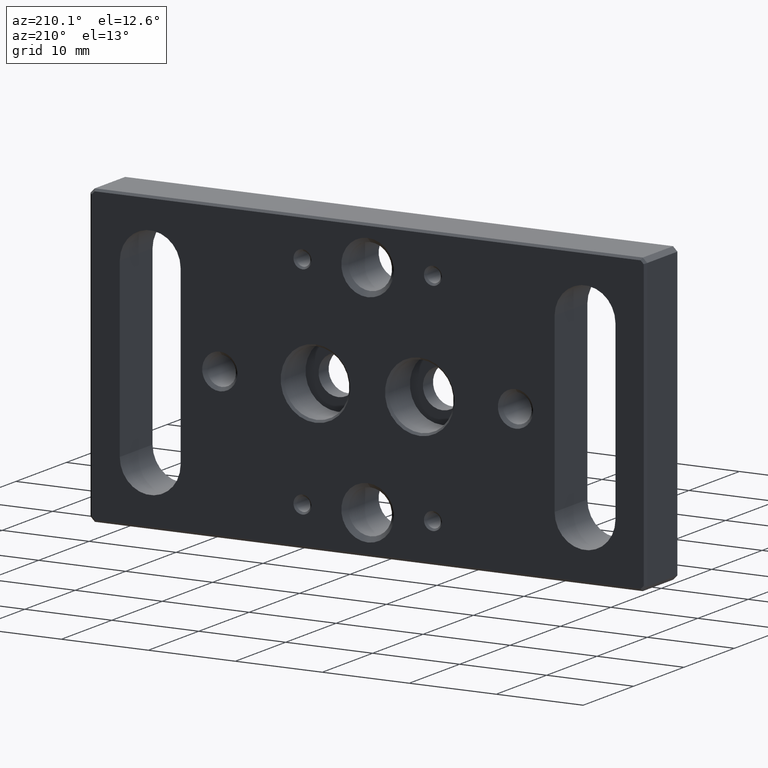
[diagram: clean part render]
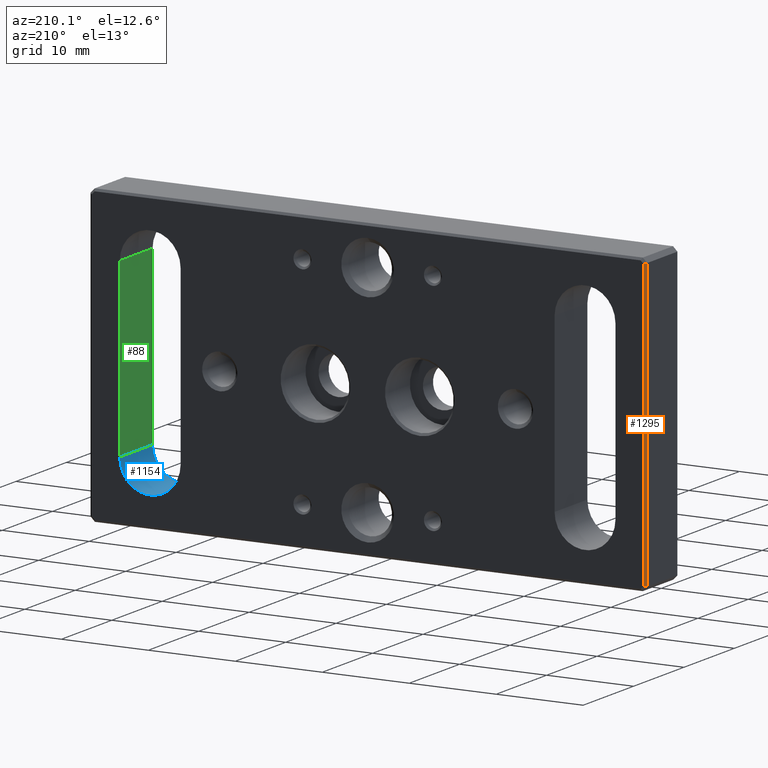
[diagram: same view with three faces highlighted in distinct colors, each labeled with its STEP entity id]
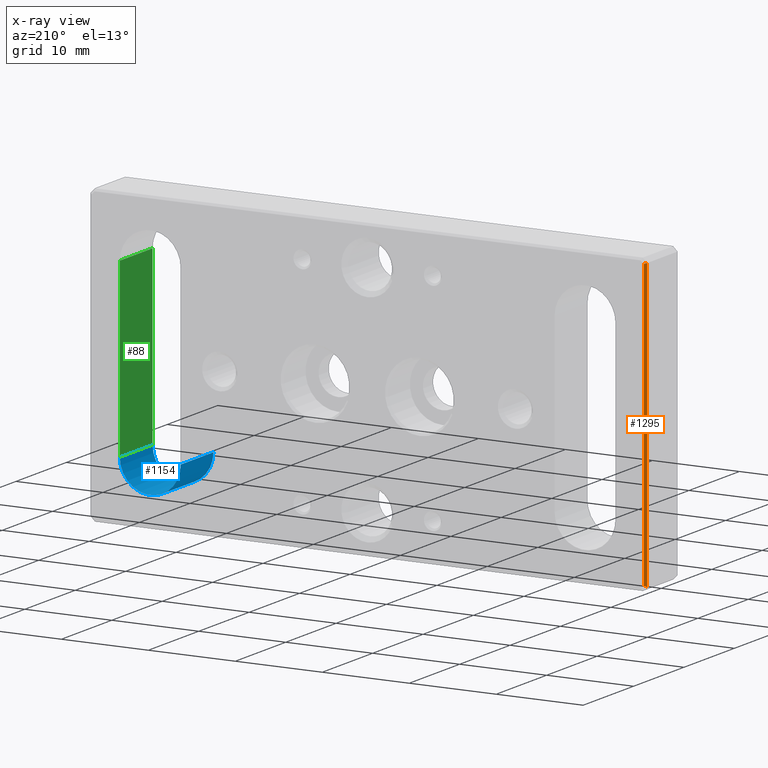
[diagram: x-ray of the same camera — body ghosted, the three highlighted faces saturated]
A machine part, auxiliary view with three faces highlighted in distinct colors.
The next image is the same camera in x-ray (body ghosted, the three faces saturated) — at least one of them is partly hidden behind the body in this view.
Their STEP definitions:

[orange] entity #1295 — the highlighted planar face has unit normal (-0.7071, 0.7071, 0).
#32 = ORIENTED_EDGE ( 'NONE', *, *, #591, .F. ) ;
#78 = CARTESIAN_POINT ( 'NONE',  ( -28.62248324118545639, 9.627516758814469000, 15.10098675135643198 ) ) ;
#81 = LINE ( 'NONE', #1485, #1602 ) ;
#93 = DIRECTION ( 'NONE',  ( -0.6785983445458498853, -0.6785983445458311225, 0.2810846377148519259 ) ) ;
#95 = ORIENTED_EDGE ( 'NONE', *, *, #98, .F. ) ;
#98 = EDGE_CURVE ( 'NONE', #1043, #375, #334, .T. ) ;
#110 = PLANE ( 'NONE',  #1569 ) ;
#124 = VECTOR ( 'NONE', #93, 1000.000000000000000 ) ;
#274 = DIRECTION ( 'NONE',  ( -0.7071067811865376918, 0.7071067811865573427, 0.000000000000000000 ) ) ;
#281 = LINE ( 'NONE', #78, #124 ) ;
#315 = VECTOR ( 'NONE', #1335, 1000.000000000000000 ) ;
#334 = LINE ( 'NONE', #707, #315 ) ;
#351 = EDGE_CURVE ( 'NONE', #1043, #810, #81, .T. ) ;
#375 = VERTEX_POINT ( 'NONE', #751 ) ;
#525 = DIRECTION ( 'NONE',  ( 0.000000000000000000, 0.000000000000000000, -1.000000000000000000 ) ) ;
#591 = EDGE_CURVE ( 'NONE', #375, #783, #281, .T. ) ;
#647 = CARTESIAN_POINT ( 'NONE',  ( -32.00000000000000711, 6.250000000000013323, 16.49999999999998224 ) ) ;
#693 = VECTOR ( 'NONE', #1258, 1000.000000000000000 ) ;
#707 = CARTESIAN_POINT ( 'NONE',  ( -31.75000000000001421, 6.500000000000000000, 16.49999999999998224 ) ) ;
#751 = CARTESIAN_POINT ( 'NONE',  ( -31.75000000000001421, 6.500000000000000000, 16.39644660940670207 ) ) ;
#755 = LINE ( 'NONE', #1264, #693 ) ;
#767 = EDGE_LOOP ( 'NONE', ( #1144, #1270, #32, #95 ) ) ;
#783 = VERTEX_POINT ( 'NONE', #647 ) ;
#810 = VERTEX_POINT ( 'NONE', #1116 ) ;
#910 = FACE_OUTER_BOUND ( 'NONE', #767, .T. ) ;
#1043 = VERTEX_POINT ( 'NONE', #1242 ) ;
#1116 = CARTESIAN_POINT ( 'NONE',  ( -32.00000000000000711, 6.250000000000012434, -16.50000000000001776 ) ) ;
#1144 = ORIENTED_EDGE ( 'NONE', *, *, #351, .T. ) ;
#1242 = CARTESIAN_POINT ( 'NONE',  ( -31.75000000000001421, 6.500000000000000000, -16.39644660940674470 ) ) ;
#1258 = DIRECTION ( 'NONE',  ( 0.000000000000000000, 0.000000000000000000, -1.000000000000000000 ) ) ;
#1264 = CARTESIAN_POINT ( 'NONE',  ( -32.00000000000000711, 6.250000000000013323, -16.50000000000001776 ) ) ;
#1270 = ORIENTED_EDGE ( 'NONE', *, *, #1339, .F. ) ;
#1295 = ADVANCED_FACE ( 'NONE', ( #910 ), #110, .T. ) ;
#1335 = DIRECTION ( 'NONE',  ( 0.000000000000000000, 0.000000000000000000, 1.000000000000000000 ) ) ;
#1339 = EDGE_CURVE ( 'NONE', #783, #810, #755, .T. ) ;
#1388 = CARTESIAN_POINT ( 'NONE',  ( -31.75000000000001421, 6.500000000000000000, 0.000000000000000000 ) ) ;
#1476 = DIRECTION ( 'NONE',  ( -0.6785983445458545482, -0.6785983445458357854, -0.2810846377148294994 ) ) ;
#1485 = CARTESIAN_POINT ( 'NONE',  ( -29.67917303211865132, 8.570826967881306047, -15.53868199398230843 ) ) ;
#1569 = AXIS2_PLACEMENT_3D ( 'NONE', #1388, #274, #525 ) ;
#1602 = VECTOR ( 'NONE', #1476, 999.9999999999998863 ) ;

[blue] entity #1154 — the highlighted cylindrical surface (edge-blend (fillet) strip) has radius 3.5 mm, axis along (-0, 1, -0).
#144 = CARTESIAN_POINT ( 'NONE',  ( 28.49999999999997513, 6.500000000000000000, -9.999999999999992895 ) ) ;
#164 = VERTEX_POINT ( 'NONE', #736 ) ;
#195 = VERTEX_POINT ( 'NONE', #243 ) ;
#211 = ORIENTED_EDGE ( 'NONE', *, *, #1033, .T. ) ;
#235 = CARTESIAN_POINT ( 'NONE',  ( 28.49999999999997513, 0.000000000000000000, -9.999999999999992895 ) ) ;
#243 = CARTESIAN_POINT ( 'NONE',  ( 28.49999999999997513, 0.000000000000000000, -9.999999999999992895 ) ) ;
#256 = ORIENTED_EDGE ( 'NONE', *, *, #831, .F. ) ;
#269 = VERTEX_POINT ( 'NONE', #336 ) ;
#323 = CIRCLE ( 'NONE', #430, 3.499999999999999556 ) ;
#336 = CARTESIAN_POINT ( 'NONE',  ( 21.49999999999997868, 0.000000000000000000, -9.999999999999992895 ) ) ;
#382 = DIRECTION ( 'NONE',  ( 0.000000000000000000, 1.000000000000000000, -0.000000000000000000 ) ) ;
#430 = AXIS2_PLACEMENT_3D ( 'NONE', #1010, #382, #912 ) ;
#482 = CARTESIAN_POINT ( 'NONE',  ( 21.49999999999997868, 0.000000000000000000, -9.999999999999992895 ) ) ;
#603 = CARTESIAN_POINT ( 'NONE',  ( 25.00000000000000355, 0.000000000000000000, -10.00000000000000000 ) ) ;
#643 = VECTOR ( 'NONE', #1399, 1000.000000000000000 ) ;
#644 = EDGE_CURVE ( 'NONE', #195, #269, #1311, .T. ) ;
#698 = VECTOR ( 'NONE', #1643, 1000.000000000000000 ) ;
#736 = CARTESIAN_POINT ( 'NONE',  ( 21.49999999999997868, 6.500000000000000000, -9.999999999999992895 ) ) ;
#831 = EDGE_CURVE ( 'NONE', #269, #164, #1018, .T. ) ;
#849 = DIRECTION ( 'NONE',  ( 0.000000000000000000, 0.000000000000000000, -1.000000000000000000 ) ) ;
#912 = DIRECTION ( 'NONE',  ( 0.000000000000000000, 0.000000000000000000, -1.000000000000000000 ) ) ;
#958 = AXIS2_PLACEMENT_3D ( 'NONE', #1141, #1529, #1396 ) ;
#1010 = CARTESIAN_POINT ( 'NONE',  ( 25.00000000000000355, 6.500000000000000000, -10.00000000000000000 ) ) ;
#1018 = LINE ( 'NONE', #482, #643 ) ;
#1021 = FACE_OUTER_BOUND ( 'NONE', #1446, .T. ) ;
#1033 = EDGE_CURVE ( 'NONE', #195, #1370, #1495, .T. ) ;
#1141 = CARTESIAN_POINT ( 'NONE',  ( 25.00000000000000355, 0.000000000000000000, -10.00000000000000000 ) ) ;
#1146 = EDGE_CURVE ( 'NONE', #1370, #164, #323, .T. ) ;
#1154 = ADVANCED_FACE ( 'NONE', ( #1021 ), #1521, .F. ) ;
#1155 = AXIS2_PLACEMENT_3D ( 'NONE', #603, #1474, #849 ) ;
#1244 = ORIENTED_EDGE ( 'NONE', *, *, #1146, .T. ) ;
#1311 = CIRCLE ( 'NONE', #1155, 3.499999999999999556 ) ;
#1370 = VERTEX_POINT ( 'NONE', #144 ) ;
#1396 = DIRECTION ( 'NONE',  ( 0.000000000000000000, 0.000000000000000000, 1.000000000000000000 ) ) ;
#1399 = DIRECTION ( 'NONE',  ( -0.000000000000000000, 1.000000000000000000, -0.000000000000000000 ) ) ;
#1446 = EDGE_LOOP ( 'NONE', ( #1244, #256, #1555, #211 ) ) ;
#1474 = DIRECTION ( 'NONE',  ( 0.000000000000000000, 1.000000000000000000, -0.000000000000000000 ) ) ;
#1495 = LINE ( 'NONE', #235, #698 ) ;
#1521 = CYLINDRICAL_SURFACE ( 'NONE', #958, 3.499999999999999556 ) ;
#1529 = DIRECTION ( 'NONE',  ( -0.000000000000000000, 1.000000000000000000, -0.000000000000000000 ) ) ;
#1555 = ORIENTED_EDGE ( 'NONE', *, *, #644, .F. ) ;
#1643 = DIRECTION ( 'NONE',  ( -0.000000000000000000, 1.000000000000000000, -0.000000000000000000 ) ) ;

[green] entity #88 — the highlighted planar face has unit normal (1, 0, -0).
#88 = ADVANCED_FACE ( 'NONE', ( #1191 ), #1080, .F. ) ;
#144 = CARTESIAN_POINT ( 'NONE',  ( 28.49999999999997513, 6.500000000000000000, -9.999999999999992895 ) ) ;
#195 = VERTEX_POINT ( 'NONE', #243 ) ;
#235 = CARTESIAN_POINT ( 'NONE',  ( 28.49999999999997513, 0.000000000000000000, -9.999999999999992895 ) ) ;
#243 = CARTESIAN_POINT ( 'NONE',  ( 28.49999999999997513, 0.000000000000000000, -9.999999999999992895 ) ) ;
#252 = EDGE_CURVE ( 'NONE', #1498, #1370, #1457, .T. ) ;
#295 = CARTESIAN_POINT ( 'NONE',  ( 28.50000000000000355, 6.500000000000000000, 9.999999999999992895 ) ) ;
#300 = DIRECTION ( 'NONE',  ( -0.000000000000000000, -0.000000000000000000, -1.000000000000000000 ) ) ;
#319 = CARTESIAN_POINT ( 'NONE',  ( 28.49999999999997513, 6.500000000000000000, -9.999999999999992895 ) ) ;
#391 = EDGE_LOOP ( 'NONE', ( #1360, #1326, #1277, #907 ) ) ;
#431 = DIRECTION ( 'NONE',  ( -0.000000000000000000, 1.000000000000000000, -0.000000000000000000 ) ) ;
#436 = DIRECTION ( 'NONE',  ( 1.000000000000000000, 0.000000000000000000, -0.000000000000000000 ) ) ;
#452 = CARTESIAN_POINT ( 'NONE',  ( 28.49999999999997513, 0.000000000000000000, -9.999999999999992895 ) ) ;
#486 = VECTOR ( 'NONE', #300, 1000.000000000000000 ) ;
#542 = EDGE_CURVE ( 'NONE', #1524, #195, #1572, .T. ) ;
#669 = CARTESIAN_POINT ( 'NONE',  ( 28.50000000000000355, 0.000000000000000000, 9.999999999999992895 ) ) ;
#698 = VECTOR ( 'NONE', #1643, 1000.000000000000000 ) ;
#870 = VECTOR ( 'NONE', #1448, 1000.000000000000000 ) ;
#899 = LINE ( 'NONE', #669, #1597 ) ;
#907 = ORIENTED_EDGE ( 'NONE', *, *, #1517, .T. ) ;
#1033 = EDGE_CURVE ( 'NONE', #195, #1370, #1495, .T. ) ;
#1080 = PLANE ( 'NONE',  #1511 ) ;
#1191 = FACE_OUTER_BOUND ( 'NONE', #391, .T. ) ;
#1277 = ORIENTED_EDGE ( 'NONE', *, *, #542, .F. ) ;
#1283 = CARTESIAN_POINT ( 'NONE',  ( 28.50000000000000355, 0.000000000000000000, 9.999999999999992895 ) ) ;
#1326 = ORIENTED_EDGE ( 'NONE', *, *, #1033, .F. ) ;
#1360 = ORIENTED_EDGE ( 'NONE', *, *, #252, .T. ) ;
#1370 = VERTEX_POINT ( 'NONE', #144 ) ;
#1442 = CARTESIAN_POINT ( 'NONE',  ( 28.49999999999997513, 0.000000000000000000, -9.999999999999992895 ) ) ;
#1448 = DIRECTION ( 'NONE',  ( -0.000000000000000000, -0.000000000000000000, -1.000000000000000000 ) ) ;
#1457 = LINE ( 'NONE', #319, #870 ) ;
#1495 = LINE ( 'NONE', #235, #698 ) ;
#1498 = VERTEX_POINT ( 'NONE', #295 ) ;
#1511 = AXIS2_PLACEMENT_3D ( 'NONE', #452, #436, #1590 ) ;
#1517 = EDGE_CURVE ( 'NONE', #1524, #1498, #899, .T. ) ;
#1524 = VERTEX_POINT ( 'NONE', #1283 ) ;
#1572 = LINE ( 'NONE', #1442, #486 ) ;
#1590 = DIRECTION ( 'NONE',  ( -0.000000000000000000, 0.000000000000000000, -1.000000000000000000 ) ) ;
#1597 = VECTOR ( 'NONE', #431, 1000.000000000000000 ) ;
#1643 = DIRECTION ( 'NONE',  ( -0.000000000000000000, 1.000000000000000000, -0.000000000000000000 ) ) ;